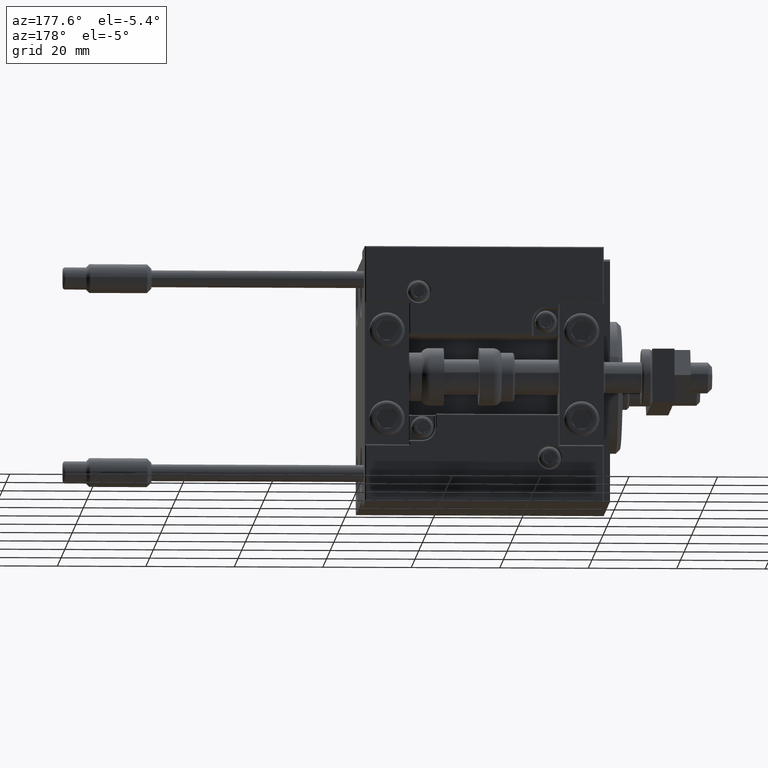
[diagram: clean part render]
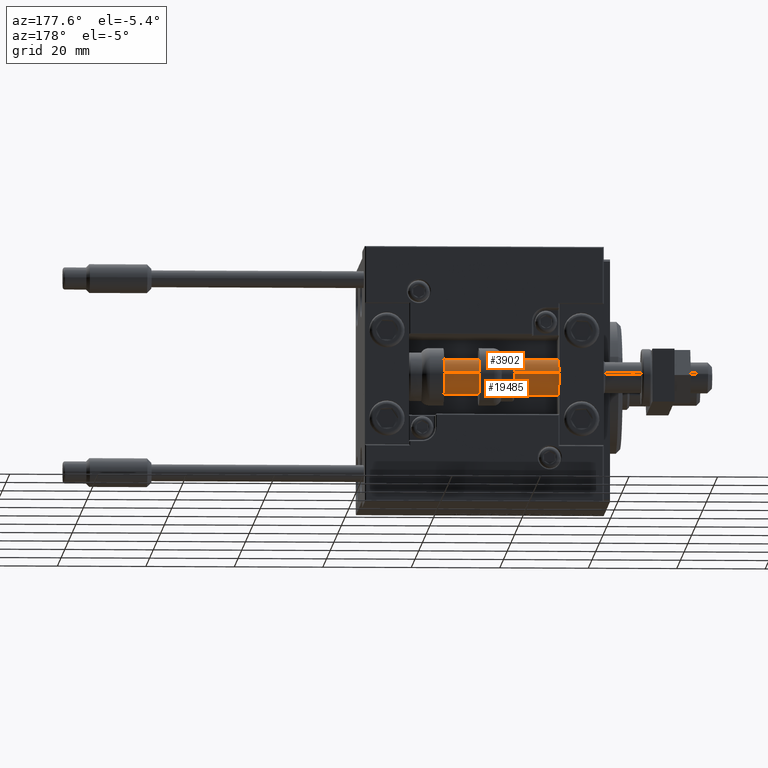
[diagram: same view with one multi-face feature highlighted, each face labeled with its STEP entity id]
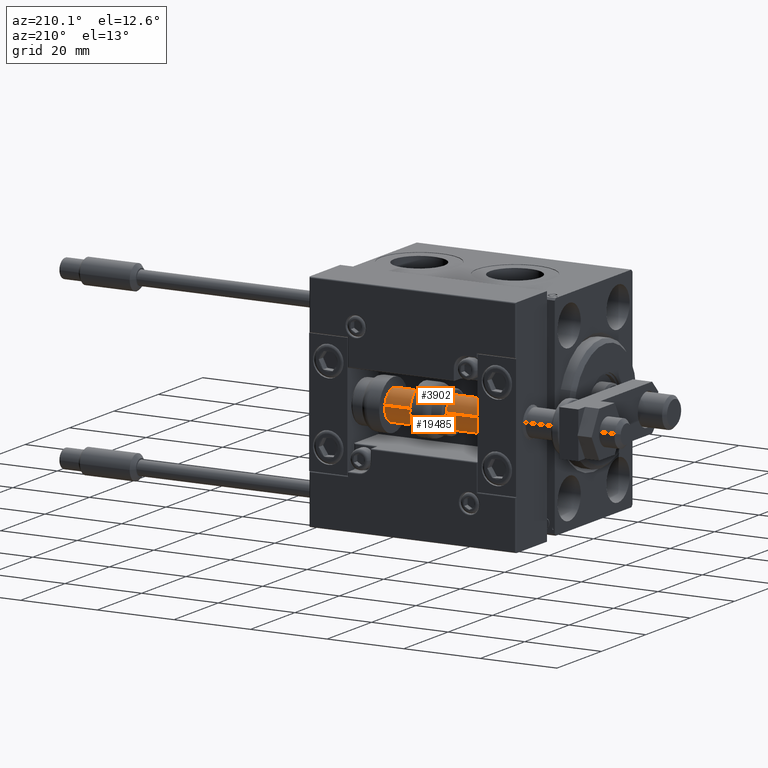
[diagram: same view with one multi-face feature highlighted, each face labeled with its STEP entity id]
A machine part, auxiliary view. The highlighted faces form ONE feature: a constant-radius fillet chain: 2 tangent blend faces with common blend radius 4 mm. The faces share edges in the B-rep.
A second angle (auxiliary view) of the same feature is appended — it is thin or edge-on in the first view.
Their STEP definitions:
[1] entity #3902 (Cylinder):
#556 = FACE_OUTER_BOUND ( 'NONE', #22078, .T. ) ;
#2738 = CARTESIAN_POINT ( 'NONE',  ( -4.000000000000000000, 0.000000000000000000, 56.00000000000000000 ) ) ;
#3549 = VERTEX_POINT ( 'NONE', #26729 ) ;
#3902 = ADVANCED_FACE ( 'NONE', ( #556 ), #35426, .T. ) ;
#4427 = DIRECTION ( 'NONE',  ( -0.000000000000000000, -0.000000000000000000, -1.000000000000000000 ) ) ;
#4722 = VERTEX_POINT ( 'NONE', #11703 ) ;
#6366 = DIRECTION ( 'NONE',  ( 1.000000000000000000, 0.000000000000000000, 0.000000000000000000 ) ) ;
#7551 = DIRECTION ( 'NONE',  ( -1.000000000000000000, 0.000000000000000000, 0.000000000000000000 ) ) ;
#7753 = VERTEX_POINT ( 'NONE', #40419 ) ;
#11703 = CARTESIAN_POINT ( 'NONE',  ( -4.000000000000000000, 0.000000000000000000, 2.000000000000036415 ) ) ;
#11719 = DIRECTION ( 'NONE',  ( 1.000000000000000000, 0.000000000000000000, 0.000000000000000000 ) ) ;
#12117 = AXIS2_PLACEMENT_3D ( 'NONE', #31815, #4427, #7551 ) ;
#12665 = ORIENTED_EDGE ( 'NONE', *, *, #44996, .F. ) ;
#15329 = CARTESIAN_POINT ( 'NONE',  ( 0.000000000000000000, 0.000000000000000000, 2.000000000000036415 ) ) ;
#21763 = LINE ( 'NONE', #38011, #45865 ) ;
#22078 = EDGE_LOOP ( 'NONE', ( #12665, #33224, #36183, #26982 ) ) ;
#22693 = VECTOR ( 'NONE', #49543, 1000.000000000000000 ) ;
#22989 = EDGE_CURVE ( 'NONE', #7753, #4722, #26271, .T. ) ;
#24030 = AXIS2_PLACEMENT_3D ( 'NONE', #15329, #47894, #11719 ) ;
#25997 = CARTESIAN_POINT ( 'NONE',  ( 0.000000000000000000, 0.000000000000000000, 56.00000000000000000 ) ) ;
#26271 = LINE ( 'NONE', #2738, #22693 ) ;
#26729 = CARTESIAN_POINT ( 'NONE',  ( 4.000000000000000000, 4.898587196589412829E-16, 56.00000000000000000 ) ) ;
#26982 = ORIENTED_EDGE ( 'NONE', *, *, #22989, .F. ) ;
#29264 = CIRCLE ( 'NONE', #42482, 4.000000000000000000 ) ;
#31815 = CARTESIAN_POINT ( 'NONE',  ( 0.000000000000000000, 0.000000000000000000, 56.00000000000000000 ) ) ;
#32432 = DIRECTION ( 'NONE',  ( -0.000000000000000000, -0.000000000000000000, -1.000000000000000000 ) ) ;
#33101 = VERTEX_POINT ( 'NONE', #44496 ) ;
#33224 = ORIENTED_EDGE ( 'NONE', *, *, #50783, .T. ) ;
#35426 = CYLINDRICAL_SURFACE ( 'NONE', #12117, 4.000000000000000000 ) ;
#36014 = EDGE_CURVE ( 'NONE', #33101, #4722, #46287, .T. ) ;
#36183 = ORIENTED_EDGE ( 'NONE', *, *, #36014, .T. ) ;
#38011 = CARTESIAN_POINT ( 'NONE',  ( 4.000000000000000000, 4.898587196589412829E-16, 56.00000000000000000 ) ) ;
#40419 = CARTESIAN_POINT ( 'NONE',  ( -4.000000000000000000, 0.000000000000000000, 56.00000000000000000 ) ) ;
#41754 = DIRECTION ( 'NONE',  ( 0.000000000000000000, 0.000000000000000000, 1.000000000000000000 ) ) ;
#42482 = AXIS2_PLACEMENT_3D ( 'NONE', #25997, #41754, #6366 ) ;
#44496 = CARTESIAN_POINT ( 'NONE',  ( 4.000000000000000000, 4.898587196589412829E-16, 2.000000000000036415 ) ) ;
#44996 = EDGE_CURVE ( 'NONE', #3549, #7753, #29264, .T. ) ;
#45865 = VECTOR ( 'NONE', #32432, 1000.000000000000000 ) ;
#46287 = CIRCLE ( 'NONE', #24030, 4.000000000000000000 ) ;
#47894 = DIRECTION ( 'NONE',  ( -0.000000000000000000, -0.000000000000000000, 1.000000000000000000 ) ) ;
#49543 = DIRECTION ( 'NONE',  ( -0.000000000000000000, -0.000000000000000000, -1.000000000000000000 ) ) ;
#50783 = EDGE_CURVE ( 'NONE', #3549, #33101, #21763, .T. ) ;
[2] entity #19485 (Cylinder):
#1042 = CIRCLE ( 'NONE', #8487, 4.000000000000000000 ) ;
#2738 = CARTESIAN_POINT ( 'NONE',  ( -4.000000000000000000, 0.000000000000000000, 56.00000000000000000 ) ) ;
#2962 = CARTESIAN_POINT ( 'NONE',  ( 0.000000000000000000, 0.000000000000000000, 56.00000000000000000 ) ) ;
#3549 = VERTEX_POINT ( 'NONE', #26729 ) ;
#4722 = VERTEX_POINT ( 'NONE', #11703 ) ;
#4743 = EDGE_CURVE ( 'NONE', #7753, #3549, #8875, .T. ) ;
#7418 = ORIENTED_EDGE ( 'NONE', *, *, #22989, .T. ) ;
#7753 = VERTEX_POINT ( 'NONE', #40419 ) ;
#8487 = AXIS2_PLACEMENT_3D ( 'NONE', #16287, #32032, #31524 ) ;
#8875 = CIRCLE ( 'NONE', #44351, 4.000000000000000000 ) ;
#11703 = CARTESIAN_POINT ( 'NONE',  ( -4.000000000000000000, 0.000000000000000000, 2.000000000000036415 ) ) ;
#14847 = CYLINDRICAL_SURFACE ( 'NONE', #49003, 4.000000000000000000 ) ;
#16287 = CARTESIAN_POINT ( 'NONE',  ( 0.000000000000000000, 0.000000000000000000, 2.000000000000036415 ) ) ;
#16425 = EDGE_LOOP ( 'NONE', ( #37757, #49534, #7418, #24314 ) ) ;
#17097 = EDGE_CURVE ( 'NONE', #4722, #33101, #1042, .T. ) ;
#19485 = ADVANCED_FACE ( 'NONE', ( #38346 ), #14847, .T. ) ;
#21763 = LINE ( 'NONE', #38011, #45865 ) ;
#22693 = VECTOR ( 'NONE', #49543, 1000.000000000000000 ) ;
#22989 = EDGE_CURVE ( 'NONE', #7753, #4722, #26271, .T. ) ;
#24314 = ORIENTED_EDGE ( 'NONE', *, *, #17097, .T. ) ;
#26271 = LINE ( 'NONE', #2738, #22693 ) ;
#26729 = CARTESIAN_POINT ( 'NONE',  ( 4.000000000000000000, 4.898587196589412829E-16, 56.00000000000000000 ) ) ;
#27716 = CARTESIAN_POINT ( 'NONE',  ( 0.000000000000000000, 0.000000000000000000, 56.00000000000000000 ) ) ;
#31328 = DIRECTION ( 'NONE',  ( 0.000000000000000000, 0.000000000000000000, 1.000000000000000000 ) ) ;
#31524 = DIRECTION ( 'NONE',  ( 1.000000000000000000, 0.000000000000000000, 0.000000000000000000 ) ) ;
#32032 = DIRECTION ( 'NONE',  ( -0.000000000000000000, -0.000000000000000000, 1.000000000000000000 ) ) ;
#32432 = DIRECTION ( 'NONE',  ( -0.000000000000000000, -0.000000000000000000, -1.000000000000000000 ) ) ;
#33101 = VERTEX_POINT ( 'NONE', #44496 ) ;
#34473 = DIRECTION ( 'NONE',  ( -0.000000000000000000, -0.000000000000000000, -1.000000000000000000 ) ) ;
#37757 = ORIENTED_EDGE ( 'NONE', *, *, #50783, .F. ) ;
#38011 = CARTESIAN_POINT ( 'NONE',  ( 4.000000000000000000, 4.898587196589412829E-16, 56.00000000000000000 ) ) ;
#38346 = FACE_OUTER_BOUND ( 'NONE', #16425, .T. ) ;
#40419 = CARTESIAN_POINT ( 'NONE',  ( -4.000000000000000000, 0.000000000000000000, 56.00000000000000000 ) ) ;
#44351 = AXIS2_PLACEMENT_3D ( 'NONE', #27716, #31328, #47108 ) ;
#44496 = CARTESIAN_POINT ( 'NONE',  ( 4.000000000000000000, 4.898587196589412829E-16, 2.000000000000036415 ) ) ;
#45865 = VECTOR ( 'NONE', #32432, 1000.000000000000000 ) ;
#47108 = DIRECTION ( 'NONE',  ( 1.000000000000000000, 0.000000000000000000, 0.000000000000000000 ) ) ;
#49003 = AXIS2_PLACEMENT_3D ( 'NONE', #2962, #34473, #50272 ) ;
#49534 = ORIENTED_EDGE ( 'NONE', *, *, #4743, .F. ) ;
#49543 = DIRECTION ( 'NONE',  ( -0.000000000000000000, -0.000000000000000000, -1.000000000000000000 ) ) ;
#50272 = DIRECTION ( 'NONE',  ( -1.000000000000000000, 0.000000000000000000, 0.000000000000000000 ) ) ;
#50783 = EDGE_CURVE ( 'NONE', #3549, #33101, #21763, .T. ) ;